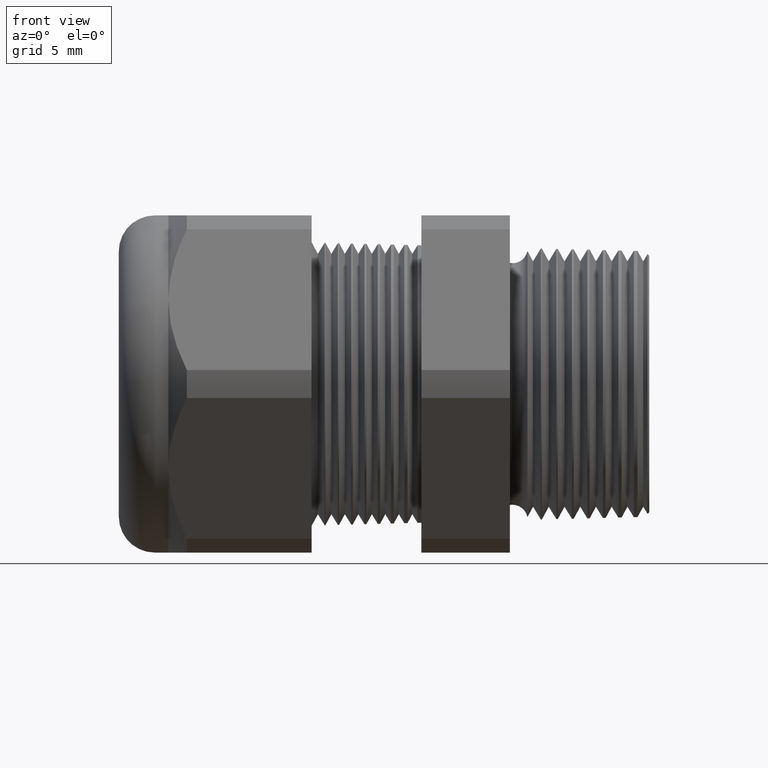
[diagram: clean part render]
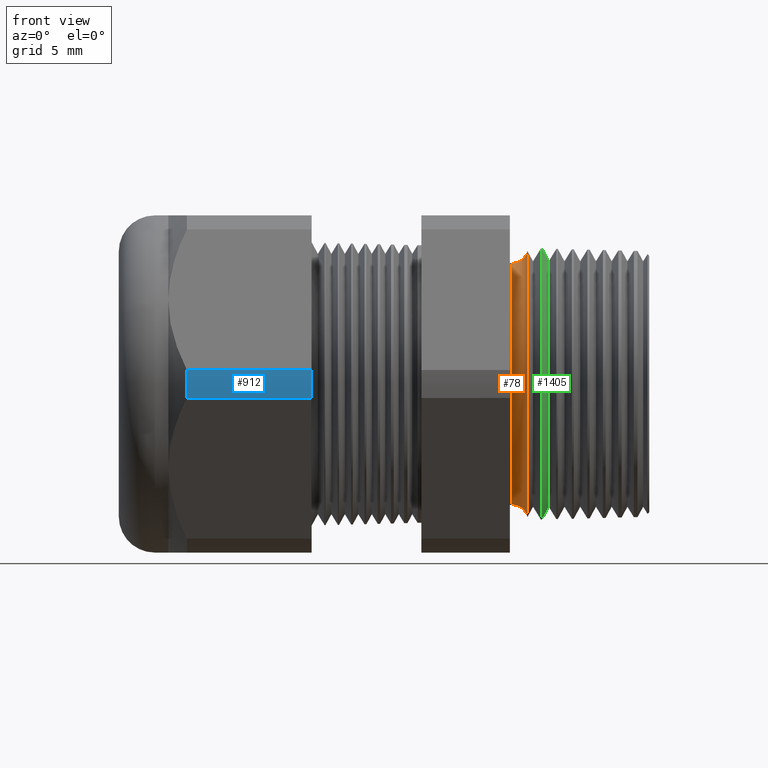
[diagram: same view with three faces highlighted in distinct colors, each labeled with its STEP entity id]
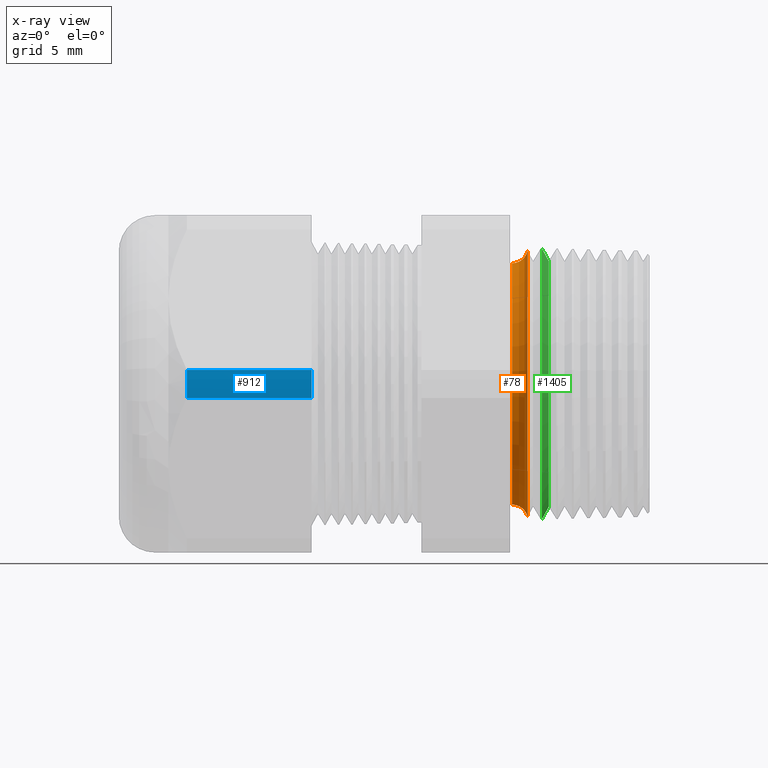
[diagram: x-ray of the same camera — body ghosted, the three highlighted faces saturated]
A machine part, front view with three faces highlighted in distinct colors.
The next image is the same camera in x-ray (body ghosted, the three faces saturated) — at least one of them is partly hidden behind the body in this view.
Their STEP definitions:

[orange] entity #78 — the highlighted toroidal blend (fillet) surface has major radius 7.7078 mm and minor (blend) radius 0.889 mm.
#7 = EDGE_LOOP ( 'NONE', ( #11, #12, #10, #13 ) ) ;
#9 = EDGE_CURVE ( 'NONE', #86, #71, #1536, .T. ) ;
#10 = ORIENTED_EDGE ( 'NONE', *, *, #70, .F. ) ;
#11 = ORIENTED_EDGE ( 'NONE', *, *, #93, .T. ) ;
#12 = ORIENTED_EDGE ( 'NONE', *, *, #14, .T. ) ;
#13 = ORIENTED_EDGE ( 'NONE', *, *, #9, .F. ) ;
#14 = EDGE_CURVE ( 'NONE', #106, #102, #1596, .T. ) ;
#70 = EDGE_CURVE ( 'NONE', #71, #102, #1692, .T. ) ;
#71 = VERTEX_POINT ( 'NONE', #1688 ) ;
#78 = ADVANCED_FACE ( 'NONE', ( #1675 ), #1674, .F. ) ;
#86 = VERTEX_POINT ( 'NONE', #1720 ) ;
#93 = EDGE_CURVE ( 'NONE', #86, #106, #1713, .T. ) ;
#102 = VERTEX_POINT ( 'NONE', #1759 ) ;
#106 = VERTEX_POINT ( 'NONE', #1752 ) ;
#1536 = CIRCLE ( 'NONE', #1601, 0.2958053544276984500 ) ;
#1593 = DIRECTION ( 'NONE',  ( 0.0000000000000000000, 0.0000000000000000000, -1.000000000000000000 ) ) ;
#1594 = DIRECTION ( 'NONE',  ( 1.000000000000000000, 0.0000000000000000000, 0.0000000000000000000 ) ) ;
#1595 = AXIS2_PLACEMENT_3D ( 'NONE', #1602, #1594, #1593 ) ;
#1596 = CIRCLE ( 'NONE', #1595, 0.2684555137900914700 ) ;
#1598 = DIRECTION ( 'NONE',  ( 0.0000000000000000000, 0.0000000000000000000, 1.000000000000000000 ) ) ;
#1599 = DIRECTION ( 'NONE',  ( 1.000000000000000000, 0.0000000000000000000, 0.0000000000000000000 ) ) ;
#1600 = CARTESIAN_POINT ( 'NONE',  ( -0.2708463023710462900, 0.0000000000000000000, 0.0000000000000000000 ) ) ;
#1601 = AXIS2_PLACEMENT_3D ( 'NONE', #1600, #1599, #1598 ) ;
#1602 = CARTESIAN_POINT ( 'NONE',  ( -0.3049999999999999400, 0.0000000000000000000, 0.0000000000000000000 ) ) ;
#1670 = DIRECTION ( 'NONE',  ( 0.0000000000000000000, 0.0000000000000000000, -1.000000000000000000 ) ) ;
#1671 = DIRECTION ( 'NONE',  ( 1.000000000000000000, 0.0000000000000000000, 0.0000000000000000000 ) ) ;
#1672 = CARTESIAN_POINT ( 'NONE',  ( -0.3049999999999999400, 0.0000000000000000000, 0.0000000000000000000 ) ) ;
#1673 = AXIS2_PLACEMENT_3D ( 'NONE', #1672, #1671, #1670 ) ;
#1674 = TOROIDAL_SURFACE ( 'NONE', #1673, 0.3034555137900913900, 0.03499999999999994800 ) ;
#1675 = FACE_OUTER_BOUND ( 'NONE', #7, .T. ) ;
#1688 = CARTESIAN_POINT ( 'NONE',  ( -0.2708463023710462900, 3.622570804705293300E-017, -0.2958053544276985100 ) ) ;
#1689 = DIRECTION ( 'NONE',  ( 0.0000000000000000000, 0.0000000000000000000, -1.000000000000000000 ) ) ;
#1690 = DIRECTION ( 'NONE',  ( 0.0000000000000000000, -1.000000000000000000, 0.0000000000000000000 ) ) ;
#1691 = AXIS2_PLACEMENT_3D ( 'NONE', #1698, #1690, #1689 ) ;
#1692 = CIRCLE ( 'NONE', #1691, 0.03499999999999996900 ) ;
#1698 = CARTESIAN_POINT ( 'NONE',  ( -0.3049999999999999400, 0.0000000000000000000, -0.3034555137900913900 ) ) ;
#1709 = DIRECTION ( 'NONE',  ( 0.0000000000000000000, 1.224646799147352700E-016, 1.000000000000000000 ) ) ;
#1710 = DIRECTION ( 'NONE',  ( 0.0000000000000000000, 1.000000000000000000, -1.224646799147353200E-016 ) ) ;
#1711 = CARTESIAN_POINT ( 'NONE',  ( -0.3049999999999999400, 3.716258236466509400E-017, 0.3034555137900913900 ) ) ;
#1712 = AXIS2_PLACEMENT_3D ( 'NONE', #1711, #1710, #1709 ) ;
#1713 = CIRCLE ( 'NONE', #1712, 0.03499999999999996900 ) ;
#1720 = CARTESIAN_POINT ( 'NONE',  ( -0.2708463023710462900, 0.0000000000000000000, 0.2958053544276985100 ) ) ;
#1752 = CARTESIAN_POINT ( 'NONE',  ( -0.3049999999999999400, 3.287631856764936700E-017, 0.2684555137900914700 ) ) ;
#1759 = CARTESIAN_POINT ( 'NONE',  ( -0.3049999999999999400, 0.0000000000000000000, -0.2684555137900914700 ) ) ;

[blue] entity #912 — the highlighted cylindrical surface (partial cylindrical patch) has radius 10.5727 mm, axis along (-1, 0, 0).
#912 = ADVANCED_FACE ( 'NONE', ( #3288 ), #3286, .T. ) ;
#913 = ORIENTED_EDGE ( 'NONE', *, *, #935, .T. ) ;
#914 = ORIENTED_EDGE ( 'NONE', *, *, #915, .T. ) ;
#915 = EDGE_CURVE ( 'NONE', #933, #916, #3281, .T. ) ;
#916 = VERTEX_POINT ( 'NONE', #3339 ) ;
#917 = ORIENTED_EDGE ( 'NONE', *, *, #918, .F. ) ;
#918 = EDGE_CURVE ( 'NONE', #919, #916, #3338, .T. ) ;
#919 = VERTEX_POINT ( 'NONE', #3334 ) ;
#920 = ORIENTED_EDGE ( 'NONE', *, *, #921, .F. ) ;
#921 = EDGE_CURVE ( 'NONE', #936, #919, #3333, .T. ) ;
#933 = VERTEX_POINT ( 'NONE', #3360 ) ;
#935 = EDGE_CURVE ( 'NONE', #936, #933, #3353, .T. ) ;
#936 = VERTEX_POINT ( 'NONE', #3349 ) ;
#939 = EDGE_LOOP ( 'NONE', ( #913, #914, #917, #920 ) ) ;
#3280 = AXIS2_PLACEMENT_3D ( 'NONE', #3287, #3341, #3340 ) ;
#3281 = CIRCLE ( 'NONE', #3280, 0.4162500000000000100 ) ;
#3282 = DIRECTION ( 'NONE',  ( 0.0000000000000000000, 0.0000000000000000000, 1.000000000000000000 ) ) ;
#3283 = DIRECTION ( 'NONE',  ( -1.000000000000000000, 0.0000000000000000000, 0.0000000000000000000 ) ) ;
#3284 = CARTESIAN_POINT ( 'NONE',  ( 0.0000000000000000000, 0.0000000000000000000, 0.0000000000000000000 ) ) ;
#3285 = AXIS2_PLACEMENT_3D ( 'NONE', #3284, #3283, #3282 ) ;
#3286 = CYLINDRICAL_SURFACE ( 'NONE', #3285, 0.4162500000000000100 ) ;
#3287 = CARTESIAN_POINT ( 'NONE',  ( -1.028513779527559200, 0.0000000000000000000, 0.0000000000000000000 ) ) ;
#3288 = FACE_OUTER_BOUND ( 'NONE', #939, .T. ) ;
#3329 = DIRECTION ( 'NONE',  ( 0.0000000000000000000, 0.0000000000000000000, -1.000000000000000000 ) ) ;
#3330 = DIRECTION ( 'NONE',  ( 1.000000000000000000, 0.0000000000000000000, 0.0000000000000000000 ) ) ;
#3331 = CARTESIAN_POINT ( 'NONE',  ( -0.7508661417322833900, 0.0000000000000000000, 0.0000000000000000000 ) ) ;
#3332 = AXIS2_PLACEMENT_3D ( 'NONE', #3331, #3330, #3329 ) ;
#3333 = CIRCLE ( 'NONE', #3332, 0.4162500000000000100 ) ;
#3334 = CARTESIAN_POINT ( 'NONE',  ( -0.7508661417322833900, -0.4150909474475088000, -0.03104138925901223400 ) ) ;
#3335 = DIRECTION ( 'NONE',  ( -1.000000000000000000, 0.0000000000000000000, 0.0000000000000000000 ) ) ;
#3336 = VECTOR ( 'NONE', #3335, 39.37007874015748100 ) ;
#3337 = CARTESIAN_POINT ( 'NONE',  ( 0.0000000000000000000, -0.4150909474475088000, -0.03104138925901223400 ) ) ;
#3338 = LINE ( 'NONE', #3337, #3336 ) ;
#3339 = CARTESIAN_POINT ( 'NONE',  ( -1.028513779527559200, -0.4150909474475088000, -0.03104138925901226600 ) ) ;
#3340 = DIRECTION ( 'NONE',  ( 0.0000000000000000000, 0.0000000000000000000, -1.000000000000000000 ) ) ;
#3341 = DIRECTION ( 'NONE',  ( 1.000000000000000000, 0.0000000000000000000, 0.0000000000000000000 ) ) ;
#3349 = CARTESIAN_POINT ( 'NONE',  ( -0.7508661417322833900, -0.4150909474475088000, 0.03104138925901204700 ) ) ;
#3350 = DIRECTION ( 'NONE',  ( -1.000000000000000000, 0.0000000000000000000, 0.0000000000000000000 ) ) ;
#3351 = VECTOR ( 'NONE', #3350, 39.37007874015748100 ) ;
#3352 = CARTESIAN_POINT ( 'NONE',  ( 0.0000000000000000000, -0.4150909474475088000, 0.03104138925901204700 ) ) ;
#3353 = LINE ( 'NONE', #3352, #3351 ) ;
#3360 = CARTESIAN_POINT ( 'NONE',  ( -1.028513779527559200, -0.4150909474475088000, 0.03104138925901204700 ) ) ;

[green] entity #1405 — the highlighted conical surface has half-angle 61.5 deg.
#595 = VERTEX_POINT ( 'NONE', #2682 ) ;
#596 = VERTEX_POINT ( 'NONE', #2681 ) ;
#684 = VERTEX_POINT ( 'NONE', #2826 ) ;
#686 = EDGE_CURVE ( 'NONE', #596, #691, #2821, .T. ) ;
#691 = VERTEX_POINT ( 'NONE', #2817 ) ;
#692 = EDGE_CURVE ( 'NONE', #595, #684, #2816, .T. ) ;
#754 = EDGE_CURVE ( 'NONE', #691, #684, #2944, .T. ) ;
#1384 = ORIENTED_EDGE ( 'NONE', *, *, #1385, .F. ) ;
#1385 = EDGE_CURVE ( 'NONE', #596, #595, #4087, .T. ) ;
#1386 = ORIENTED_EDGE ( 'NONE', *, *, #686, .T. ) ;
#1387 = ORIENTED_EDGE ( 'NONE', *, *, #754, .T. ) ;
#1405 = ADVANCED_FACE ( 'NONE', ( #4126 ), #4121, .T. ) ;
#1406 = EDGE_LOOP ( 'NONE', ( #1407, #1384, #1386, #1387 ) ) ;
#1407 = ORIENTED_EDGE ( 'NONE', *, *, #692, .F. ) ;
#2681 = CARTESIAN_POINT ( 'NONE',  ( -0.2234707356790751300, 0.0000000000000000000, 0.2730123959962613700 ) ) ;
#2682 = CARTESIAN_POINT ( 'NONE',  ( -0.2234707356790751300, 3.518462044086567100E-017, -0.2730123959962613700 ) ) ;
#2816 = LINE ( 'NONE', #2877, #2876 ) ;
#2817 = CARTESIAN_POINT ( 'NONE',  ( -0.2389904000387095000, 0.0000000000000000000, 0.3015960619748461700 ) ) ;
#2818 = DIRECTION ( 'NONE',  ( -0.4771587602596191200, 0.0000000000000000000, 0.8788171126619595000 ) ) ;
#2819 = VECTOR ( 'NONE', #2818, 39.37007874015748100 ) ;
#2820 = CARTESIAN_POINT ( 'NONE',  ( -0.2399999999999999600, 0.0000000000000000000, 0.3034555137900913900 ) ) ;
#2821 = LINE ( 'NONE', #2820, #2819 ) ;
#2826 = CARTESIAN_POINT ( 'NONE',  ( -0.2389904000387095000, 3.693796496815783200E-017, -0.3015960619748461700 ) ) ;
#2875 = DIRECTION ( 'NONE',  ( -0.4771587602596191200, 1.076240564057387800E-016, -0.8788171126619595000 ) ) ;
#2876 = VECTOR ( 'NONE', #2875, 39.37007874015748100 ) ;
#2877 = CARTESIAN_POINT ( 'NONE',  ( -0.2399999999999999600, 3.716258236466509400E-017, -0.3034555137900913900 ) ) ;
#2944 = CIRCLE ( 'NONE', #3003, 0.3015960619748461700 ) ;
#3000 = DIRECTION ( 'NONE',  ( 0.0000000000000000000, 0.0000000000000000000, 1.000000000000000000 ) ) ;
#3001 = DIRECTION ( 'NONE',  ( 1.000000000000000000, 0.0000000000000000000, 0.0000000000000000000 ) ) ;
#3002 = CARTESIAN_POINT ( 'NONE',  ( -0.2389904000387095000, 0.0000000000000000000, 0.0000000000000000000 ) ) ;
#3003 = AXIS2_PLACEMENT_3D ( 'NONE', #3002, #3001, #3000 ) ;
#4083 = DIRECTION ( 'NONE',  ( 0.0000000000000000000, 0.0000000000000000000, -1.000000000000000000 ) ) ;
#4084 = DIRECTION ( 'NONE',  ( 1.000000000000000000, 0.0000000000000000000, 0.0000000000000000000 ) ) ;
#4085 = CARTESIAN_POINT ( 'NONE',  ( -0.2234707356790751300, 0.0000000000000000000, 0.0000000000000000000 ) ) ;
#4086 = AXIS2_PLACEMENT_3D ( 'NONE', #4085, #4084, #4083 ) ;
#4087 = CIRCLE ( 'NONE', #4086, 0.2730123959962613700 ) ;
#4116 = DIRECTION ( 'NONE',  ( 0.0000000000000000000, 0.0000000000000000000, 1.000000000000000000 ) ) ;
#4117 = DIRECTION ( 'NONE',  ( -1.000000000000000000, 0.0000000000000000000, 0.0000000000000000000 ) ) ;
#4118 = CARTESIAN_POINT ( 'NONE',  ( -0.2399999999999999600, 0.0000000000000000000, 0.0000000000000000000 ) ) ;
#4119 = AXIS2_PLACEMENT_3D ( 'NONE', #4118, #4117, #4116 ) ;
#4121 = CONICAL_SURFACE ( 'NONE', #4119, 0.3034555137900913900, 1.073377489976500500 ) ;
#4126 = FACE_OUTER_BOUND ( 'NONE', #1406, .T. ) ;